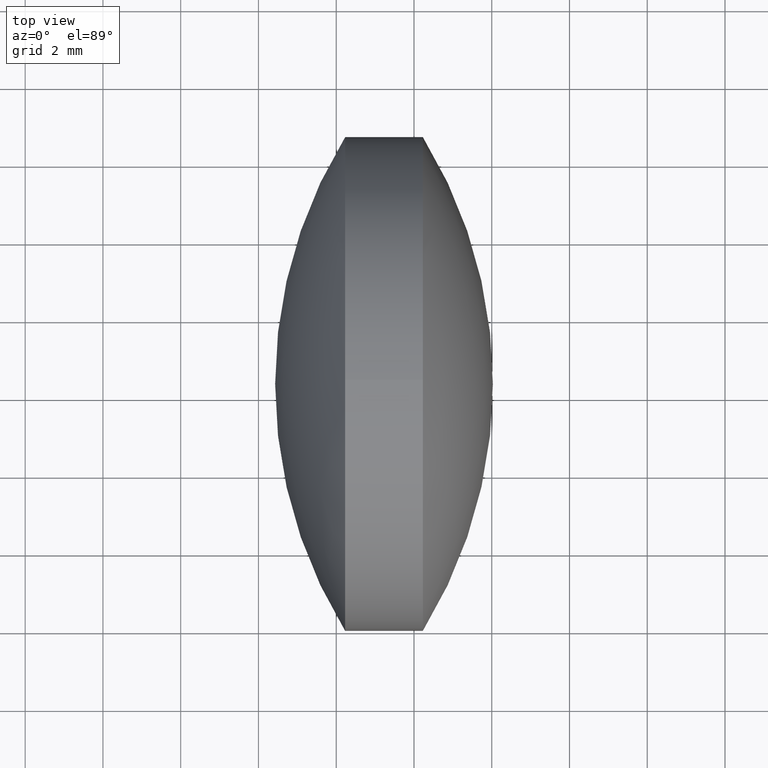
[diagram: clean part render]
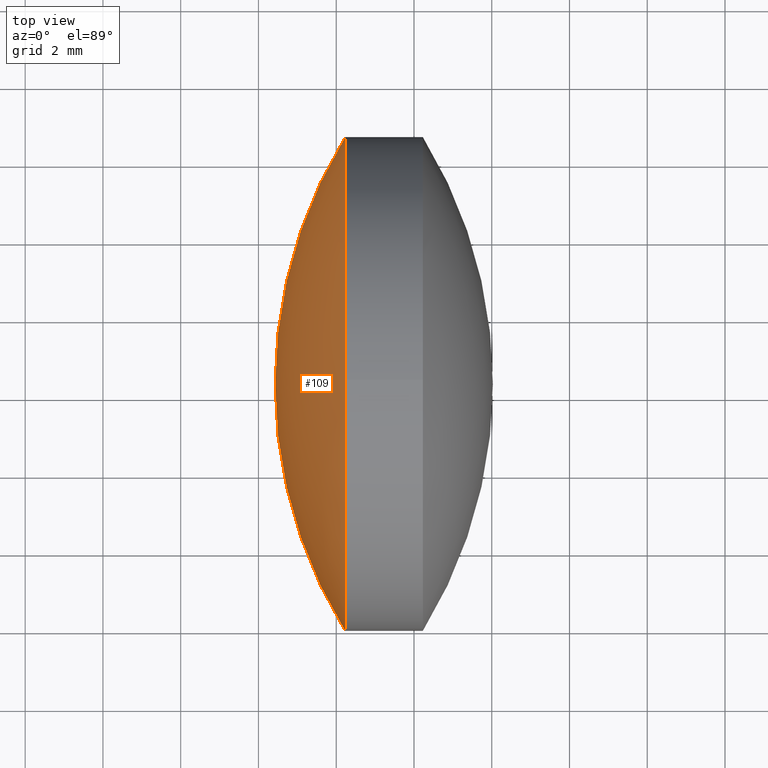
[diagram: same view with one face highlighted and labeled with its STEP entity id]
A machine part, top view. The second image highlights one B-rep face of the part: STEP entity #109.
In plain terms, the highlighted spherical surface has radius 12.101 mm.
Its self-contained STEP definition (entity closure, byte-faithful):
#19 = FACE_OUTER_BOUND ( 'NONE', #261, .T. ) ;
#37 = CARTESIAN_POINT ( 'NONE',  ( 42.22906260161698100, 24.30805651159239000, 6.349999999999997900 ) ) ;
#40 = DIRECTION ( 'NONE',  ( -1.000000000000000000, -0.0000000000000000000, -0.0000000000000000000 ) ) ;
#41 = AXIS2_PLACEMENT_3D ( 'NONE', #203, #236, #181 ) ;
#43 = CARTESIAN_POINT ( 'NONE',  ( 42.22906260161698100, 30.65805651159238800, 0.0000000000000000000 ) ) ;
#48 = CIRCLE ( 'NONE', #107, 12.10096423222029000 ) ;
#53 = ORIENTED_EDGE ( 'NONE', *, *, #204, .T. ) ;
#61 = DIRECTION ( 'NONE',  ( -0.0000000000000000000, 0.0000000000000000000, -1.000000000000000000 ) ) ;
#70 = CIRCLE ( 'NONE', #41, 6.349999999999997900 ) ;
#81 = VERTEX_POINT ( 'NONE', #173 ) ;
#107 = AXIS2_PLACEMENT_3D ( 'NONE', #233, #144, #141 ) ;
#109 = ADVANCED_FACE ( 'NONE', ( #19 ), #174, .T. ) ;
#117 = AXIS2_PLACEMENT_3D ( 'NONE', #277, #40, #334 ) ;
#129 = AXIS2_PLACEMENT_3D ( 'NONE', #251, #61, #326 ) ;
#130 = AXIS2_PLACEMENT_3D ( 'NONE', #178, #332, #331 ) ;
#141 = DIRECTION ( 'NONE',  ( 0.0000000000000000000, 1.000000000000000000, 1.224646799147353000E-016 ) ) ;
#144 = DIRECTION ( 'NONE',  ( 0.0000000000000000000, 1.224646799147353200E-016, -1.000000000000000000 ) ) ;
#147 = CIRCLE ( 'NONE', #130, 12.10096423222029000 ) ;
#173 = CARTESIAN_POINT ( 'NONE',  ( 40.42910974447412500, 24.30805651159238700, 0.0000000000000000000 ) ) ;
#174 = SPHERICAL_SURFACE ( 'NONE', #129, 12.10096423222028700 ) ;
#178 = CARTESIAN_POINT ( 'NONE',  ( 52.53007397669441800, 24.30805651159238700, 0.0000000000000000000 ) ) ;
#181 = DIRECTION ( 'NONE',  ( 0.0000000000000000000, 0.0000000000000000000, 1.000000000000000000 ) ) ;
#191 = VERTEX_POINT ( 'NONE', #269 ) ;
#203 = CARTESIAN_POINT ( 'NONE',  ( 42.22906260161698100, 24.30805651159239000, 0.0000000000000000000 ) ) ;
#204 = EDGE_CURVE ( 'NONE', #290, #81, #147, .T. ) ;
#208 = ORIENTED_EDGE ( 'NONE', *, *, #311, .T. ) ;
#218 = EDGE_CURVE ( 'NONE', #191, #317, #70, .T. ) ;
#219 = CIRCLE ( 'NONE', #117, 6.349999999999997900 ) ;
#233 = CARTESIAN_POINT ( 'NONE',  ( 52.53007397669441800, 24.30805651159238700, 0.0000000000000000000 ) ) ;
#236 = DIRECTION ( 'NONE',  ( -1.000000000000000000, -0.0000000000000000000, -0.0000000000000000000 ) ) ;
#251 = CARTESIAN_POINT ( 'NONE',  ( 52.53007397669441800, 24.30805651159238700, 0.0000000000000000000 ) ) ;
#261 = EDGE_LOOP ( 'NONE', ( #338, #342, #208, #53 ) ) ;
#269 = CARTESIAN_POINT ( 'NONE',  ( 42.22906260161698100, 17.95805651159238900, -7.776507174585690200E-016 ) ) ;
#277 = CARTESIAN_POINT ( 'NONE',  ( 42.22906260161698100, 24.30805651159239000, 0.0000000000000000000 ) ) ;
#290 = VERTEX_POINT ( 'NONE', #43 ) ;
#311 = EDGE_CURVE ( 'NONE', #317, #290, #219, .T. ) ;
#317 = VERTEX_POINT ( 'NONE', #37 ) ;
#326 = DIRECTION ( 'NONE',  ( 0.0000000000000000000, 1.000000000000000000, 0.0000000000000000000 ) ) ;
#331 = DIRECTION ( 'NONE',  ( 1.000000000000000000, 0.0000000000000000000, 0.0000000000000000000 ) ) ;
#332 = DIRECTION ( 'NONE',  ( -0.0000000000000000000, 0.0000000000000000000, 1.000000000000000000 ) ) ;
#334 = DIRECTION ( 'NONE',  ( 0.0000000000000000000, 0.0000000000000000000, 1.000000000000000000 ) ) ;
#335 = EDGE_CURVE ( 'NONE', #191, #81, #48, .T. ) ;
#338 = ORIENTED_EDGE ( 'NONE', *, *, #335, .F. ) ;
#342 = ORIENTED_EDGE ( 'NONE', *, *, #218, .T. ) ;